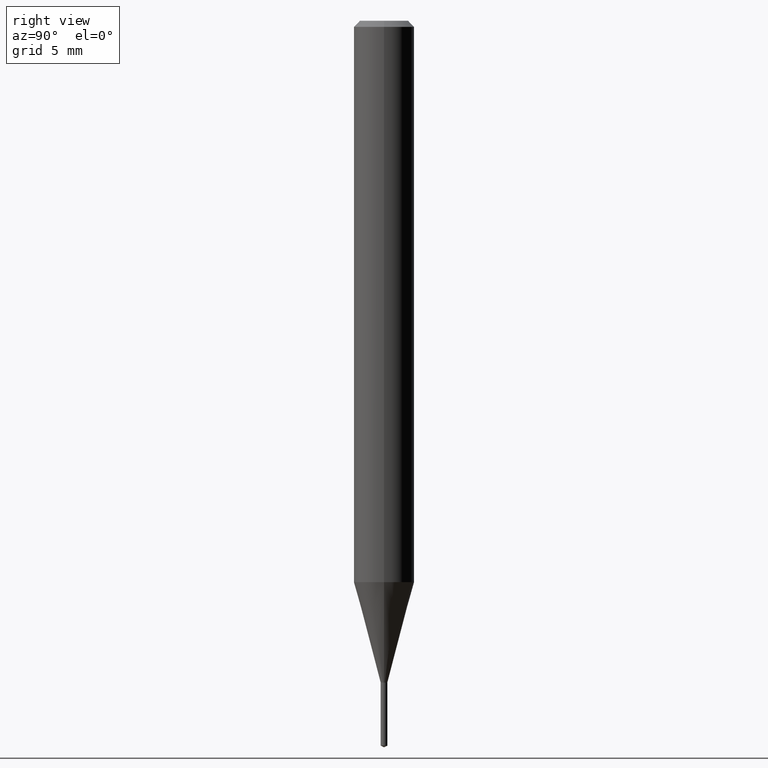
[diagram: clean part render]
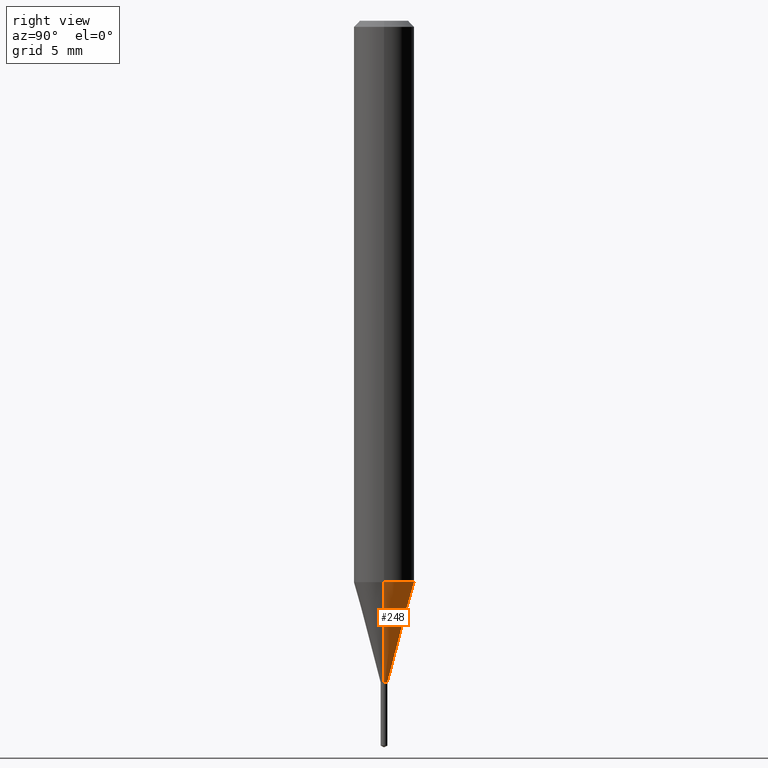
[diagram: same view with one face highlighted and labeled with its STEP entity id]
A machine part, right view. The second image highlights one B-rep face of the part: STEP entity #248.
In plain terms, the highlighted conical surface has half-angle 15 deg.
Its self-contained STEP definition (entity closure, byte-faithful):
#21 = CARTESIAN_POINT ( 'NONE',  ( -0.006899999999999999883, -4.722430948895596634E-15, -1.366600000000000037 ) ) ;
#52 = CIRCLE ( 'NONE', #339, 0.006899999999999999883 ) ;
#63 = AXIS2_PLACEMENT_3D ( 'NONE', #138, #366, #173 ) ;
#87 = VERTEX_POINT ( 'NONE', #412 ) ;
#94 = DIRECTION ( 'NONE',  ( -2.445468806185136597E-29, 3.491481338843145583E-15, 1.000000000000000000 ) ) ;
#103 = FACE_OUTER_BOUND ( 'NONE', #304, .T. ) ;
#115 = EDGE_CURVE ( 'NONE', #144, #324, #52, .T. ) ;
#135 = CARTESIAN_POINT ( 'NONE',  ( 3.341977670532607904E-29, -4.771458397663042881E-15, -1.366600000000000037 ) ) ;
#137 = EDGE_CURVE ( 'NONE', #324, #321, #288, .T. ) ;
#138 = CARTESIAN_POINT ( 'NONE',  ( 2.834537941417392274E-29, -4.046968949949650715E-15, -1.159097975099176336 ) ) ;
#144 = VERTEX_POINT ( 'NONE', #314 ) ;
#158 = ORIENTED_EDGE ( 'NONE', *, *, #323, .F. ) ;
#162 = CARTESIAN_POINT ( 'NONE',  ( 3.341977670532607904E-29, -4.771458397663042881E-15, -1.366600000000000037 ) ) ;
#173 = DIRECTION ( 'NONE',  ( 1.000000000000000000, -6.982962677686262766E-15, 0.000000000000000000 ) ) ;
#194 = CARTESIAN_POINT ( 'NONE',  ( -0.06250000000000013878, -3.602879740099588099E-15, -1.159097975099176336 ) ) ;
#204 = ORIENTED_EDGE ( 'NONE', *, *, #289, .F. ) ;
#205 = DIRECTION ( 'NONE',  ( 1.000000000000000000, -6.982962677686234367E-15, 0.000000000000000000 ) ) ;
#234 = LINE ( 'NONE', #457, #356 ) ;
#238 = VECTOR ( 'NONE', #435, 39.37007874015748854 ) ;
#248 = ADVANCED_FACE ( 'NONE', ( #103 ), #315, .T. ) ;
#279 = CIRCLE ( 'NONE', #63, 0.06250000000000013878 ) ;
#288 = LINE ( 'NONE', #21, #238 ) ;
#289 = EDGE_CURVE ( 'NONE', #87, #321, #279, .T. ) ;
#304 = EDGE_LOOP ( 'NONE', ( #344, #319, #204, #158 ) ) ;
#309 = DIRECTION ( 'NONE',  ( 0.2588190451025280114, 1.565188264969568522E-15, 0.9659258262890662028 ) ) ;
#314 = CARTESIAN_POINT ( 'NONE',  ( 0.006899999999999999883, -4.819640840139077957E-15, -1.366600000000000037 ) ) ;
#315 = CONICAL_SURFACE ( 'NONE', #487, 0.006899999999999999883, 0.2617993877991570129 ) ;
#319 = ORIENTED_EDGE ( 'NONE', *, *, #137, .T. ) ;
#321 = VERTEX_POINT ( 'NONE', #194 ) ;
#323 = EDGE_CURVE ( 'NONE', #144, #87, #234, .T. ) ;
#324 = VERTEX_POINT ( 'NONE', #349 ) ;
#339 = AXIS2_PLACEMENT_3D ( 'NONE', #162, #94, #205 ) ;
#344 = ORIENTED_EDGE ( 'NONE', *, *, #115, .T. ) ;
#349 = CARTESIAN_POINT ( 'NONE',  ( -0.006899999999999999883, -4.465632496423682021E-15, -1.366600000000000037 ) ) ;
#356 = VECTOR ( 'NONE', #309, 39.37007874015748854 ) ;
#366 = DIRECTION ( 'NONE',  ( -2.445468806185136597E-29, 3.491481338843145583E-15, 1.000000000000000000 ) ) ;
#399 = DIRECTION ( 'NONE',  ( -2.445468806185136597E-29, 3.491481338843145583E-15, 1.000000000000000000 ) ) ;
#403 = DIRECTION ( 'NONE',  ( 1.000000000000000000, -6.982962677686234367E-15, 0.000000000000000000 ) ) ;
#412 = CARTESIAN_POINT ( 'NONE',  ( 0.06250000000000013878, -4.483404117305043173E-15, -1.159097975099176336 ) ) ;
#435 = DIRECTION ( 'NONE',  ( -0.2588190451025280114, 5.211531920934590485E-15, 0.9659258262890662028 ) ) ;
#457 = CARTESIAN_POINT ( 'NONE',  ( 0.006899999999999999883, -4.819640840139077957E-15, -1.366600000000000037 ) ) ;
#487 = AXIS2_PLACEMENT_3D ( 'NONE', #135, #399, #403 ) ;